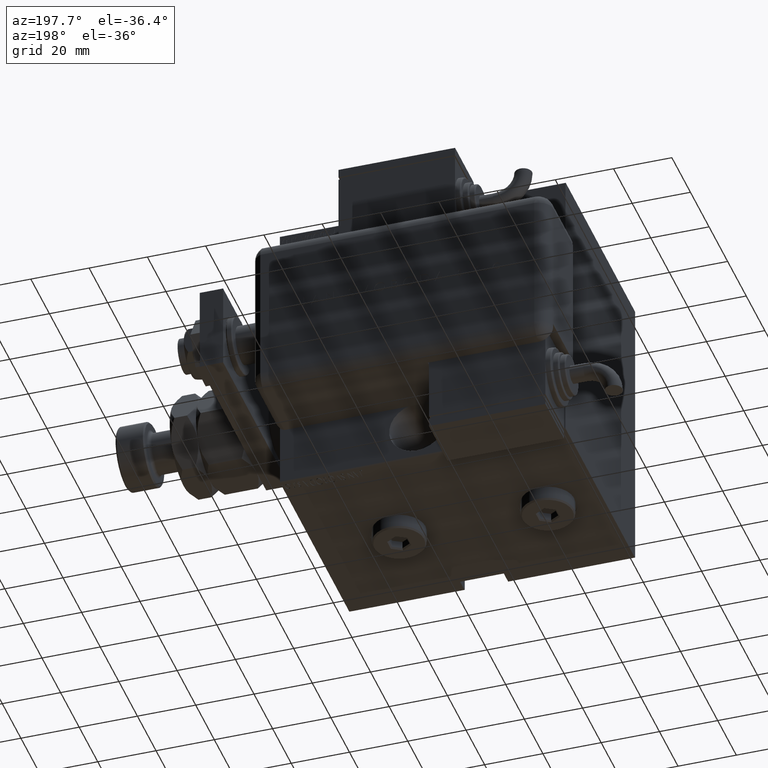
[diagram: clean part render]
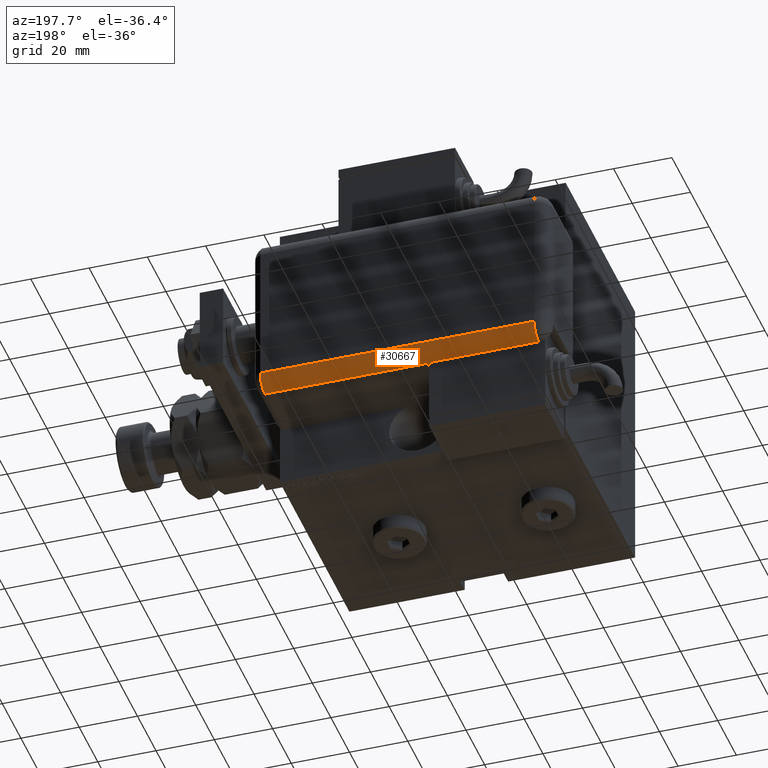
[diagram: same view with one face highlighted and labeled with its STEP entity id]
A machine part, auxiliary view. The second image highlights one B-rep face of the part: STEP entity #30667.
In plain terms, the highlighted cylindrical surface (edge-blend (fillet) strip) has radius 5 mm, axis along (-1, -0, -0).
Its self-contained STEP definition (entity closure, byte-faithful):
#70 = CARTESIAN_POINT ( 'NONE',  ( 23.99999999999999289, 25.79999999999998295, 99.00000000000000000 ) ) ;
#527 = EDGE_CURVE ( 'NONE', #40333, #10191, #8095, .T. ) ;
#592 = VECTOR ( 'NONE', #41195, 1000.000000000000000 ) ;
#2645 = ORIENTED_EDGE ( 'NONE', *, *, #29944, .F. ) ;
#4857 = ORIENTED_EDGE ( 'NONE', *, *, #48369, .T. ) ;
#5217 = CARTESIAN_POINT ( 'NONE',  ( 28.99999999999999645, 20.79999999999998295, 43.00000000000000000 ) ) ;
#5895 = CARTESIAN_POINT ( 'NONE',  ( 28.99999999999999645, 20.79999999999998295, 99.00000000000000000 ) ) ;
#8095 = CIRCLE ( 'NONE', #28934, 5.000000000000000888 ) ;
#9779 = AXIS2_PLACEMENT_3D ( 'NONE', #55175, #45831, #22194 ) ;
#10191 = VERTEX_POINT ( 'NONE', #5217 ) ;
#10424 = EDGE_LOOP ( 'NONE', ( #49429, #2645, #4857, #29772, #18847, #57248 ) ) ;
#11744 = DIRECTION ( 'NONE',  ( -0.000000000000000000, -0.000000000000000000, 1.000000000000000000 ) ) ;
#12991 = CARTESIAN_POINT ( 'NONE',  ( 23.99999999999999289, 20.79999999999998295, 99.00000000000000000 ) ) ;
#17746 = CARTESIAN_POINT ( 'NONE',  ( 28.99599839871871154, 20.99999999999999289, 43.00000000000000000 ) ) ;
#18847 = ORIENTED_EDGE ( 'NONE', *, *, #47726, .F. ) ;
#22194 = DIRECTION ( 'NONE',  ( -1.000000000000000000, 0.000000000000000000, 0.000000000000000000 ) ) ;
#22642 = DIRECTION ( 'NONE',  ( -0.000000000000000000, -0.000000000000000000, 1.000000000000000000 ) ) ;
#24675 = VERTEX_POINT ( 'NONE', #70 ) ;
#25479 = CARTESIAN_POINT ( 'NONE',  ( 23.99999999999999289, 20.79999999999998295, 99.00000000000000000 ) ) ;
#25771 = LINE ( 'NONE', #45037, #53688 ) ;
#26854 = DIRECTION ( 'NONE',  ( 0.000000000000000000, 0.000000000000000000, -1.000000000000000000 ) ) ;
#27236 = CYLINDRICAL_SURFACE ( 'NONE', #60230, 5.000000000000000888 ) ;
#27671 = DIRECTION ( 'NONE',  ( 1.000000000000000000, -6.383782391594648845E-14, 0.000000000000000000 ) ) ;
#28934 = AXIS2_PLACEMENT_3D ( 'NONE', #41656, #32019, #27671 ) ;
#29772 = ORIENTED_EDGE ( 'NONE', *, *, #47022, .F. ) ;
#29944 = EDGE_CURVE ( 'NONE', #30622, #40333, #46477, .T. ) ;
#30434 = CARTESIAN_POINT ( 'NONE',  ( 28.99599839871871154, 21.00000000000000000, 5.000000000000004441 ) ) ;
#30622 = VERTEX_POINT ( 'NONE', #30434 ) ;
#30667 = ADVANCED_FACE ( 'NONE', ( #35407 ), #27236, .T. ) ;
#32019 = DIRECTION ( 'NONE',  ( -0.000000000000000000, 0.000000000000000000, -1.000000000000000000 ) ) ;
#32545 = CIRCLE ( 'NONE', #54410, 5.000000000000000888 ) ;
#35407 = FACE_OUTER_BOUND ( 'NONE', #10424, .T. ) ;
#37621 = CIRCLE ( 'NONE', #9779, 5.000000000000000888 ) ;
#40333 = VERTEX_POINT ( 'NONE', #17746 ) ;
#41195 = DIRECTION ( 'NONE',  ( -0.000000000000000000, -0.000000000000000000, 1.000000000000000000 ) ) ;
#41656 = CARTESIAN_POINT ( 'NONE',  ( 23.99999999999999289, 20.79999999999998295, 43.00000000000000000 ) ) ;
#45037 = CARTESIAN_POINT ( 'NONE',  ( 28.99999999999999645, 20.79999999999998295, 99.00000000000000000 ) ) ;
#45207 = CARTESIAN_POINT ( 'NONE',  ( 23.99999999999999289, 25.79999999999998295, 99.00000000000000000 ) ) ;
#45831 = DIRECTION ( 'NONE',  ( -0.000000000000000000, -0.000000000000000000, 1.000000000000000000 ) ) ;
#46477 = LINE ( 'NONE', #60801, #592 ) ;
#47022 = EDGE_CURVE ( 'NONE', #24675, #56738, #51123, .T. ) ;
#47196 = DIRECTION ( 'NONE',  ( -1.000000000000000000, 0.000000000000000000, 0.000000000000000000 ) ) ;
#47726 = EDGE_CURVE ( 'NONE', #51440, #24675, #32545, .T. ) ;
#48369 = EDGE_CURVE ( 'NONE', #30622, #56738, #37621, .T. ) ;
#49429 = ORIENTED_EDGE ( 'NONE', *, *, #527, .F. ) ;
#51123 = LINE ( 'NONE', #45207, #51412 ) ;
#51412 = VECTOR ( 'NONE', #26854, 1000.000000000000000 ) ;
#51440 = VERTEX_POINT ( 'NONE', #5895 ) ;
#53688 = VECTOR ( 'NONE', #11744, 1000.000000000000000 ) ;
#53793 = DIRECTION ( 'NONE',  ( -1.000000000000000000, 0.000000000000000000, 0.000000000000000000 ) ) ;
#54410 = AXIS2_PLACEMENT_3D ( 'NONE', #12991, #22642, #47196 ) ;
#54599 = CARTESIAN_POINT ( 'NONE',  ( 23.99999999999999289, 25.79999999999998295, 5.000000000000004441 ) ) ;
#55175 = CARTESIAN_POINT ( 'NONE',  ( 23.99999999999999289, 20.79999999999998295, 5.000000000000004441 ) ) ;
#56738 = VERTEX_POINT ( 'NONE', #54599 ) ;
#57248 = ORIENTED_EDGE ( 'NONE', *, *, #58857, .F. ) ;
#58457 = DIRECTION ( 'NONE',  ( 0.000000000000000000, 0.000000000000000000, -1.000000000000000000 ) ) ;
#58857 = EDGE_CURVE ( 'NONE', #10191, #51440, #25771, .T. ) ;
#60230 = AXIS2_PLACEMENT_3D ( 'NONE', #25479, #58457, #53793 ) ;
#60801 = CARTESIAN_POINT ( 'NONE',  ( 28.99599839871871154, 20.99999999999998224, 99.00000000000000000 ) ) ;